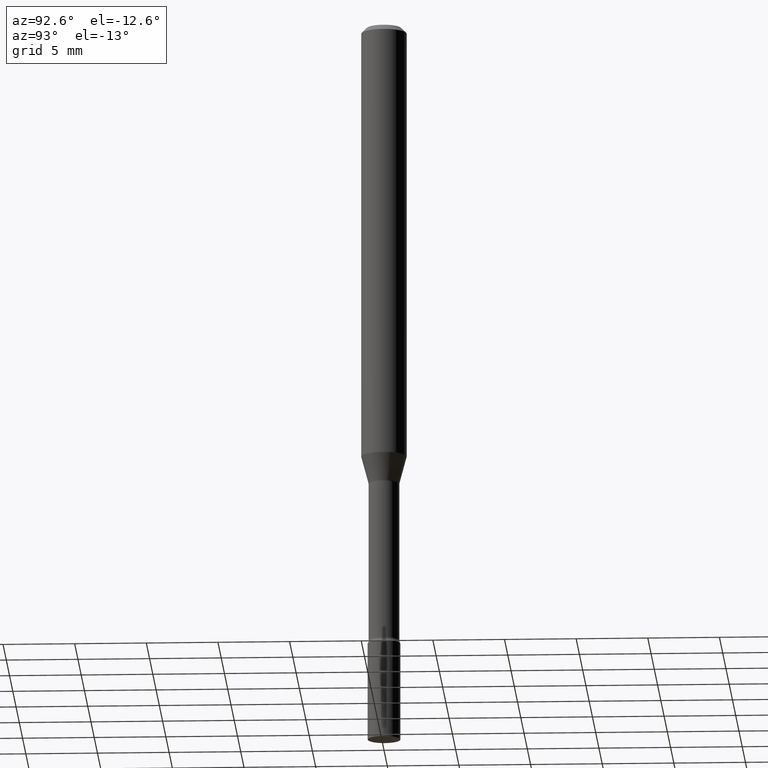
[diagram: clean part render]
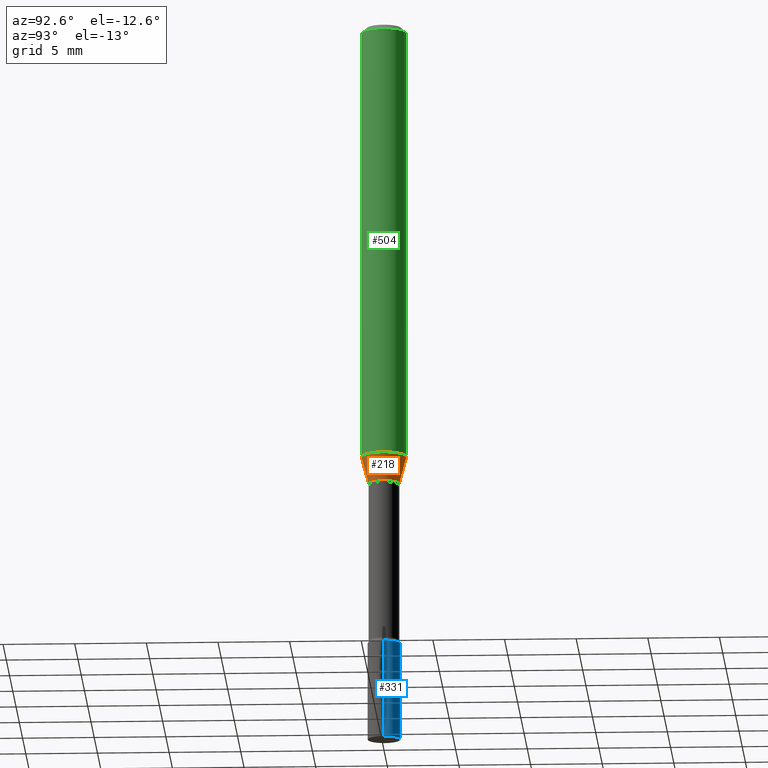
[diagram: same view with three faces highlighted in distinct colors, each labeled with its STEP entity id]
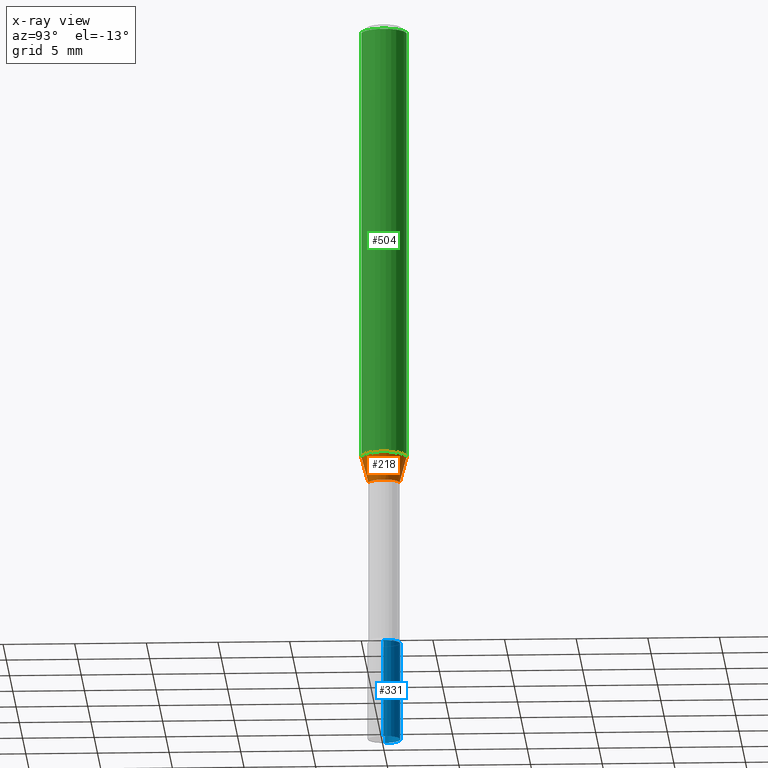
[diagram: x-ray of the same camera — body ghosted, the three highlighted faces saturated]
A machine part, auxiliary view with three faces highlighted in distinct colors.
The next image is the same camera in x-ray (body ghosted, the three faces saturated) — at least one of them is partly hidden behind the body in this view.
Their STEP definitions:

[orange] entity #218 — the highlighted conical surface has half-angle 15 deg.
#7 = CARTESIAN_POINT ( 'NONE',  ( 4.440892098500921985E-16, 0.06249999999999582279, -1.204612573687109167 ) ) ;
#9 = EDGE_CURVE ( 'NONE', #494, #47, #237, .T. ) ;
#31 = CARTESIAN_POINT ( 'NONE',  ( -4.364351673553619392E-16, -0.06250000000000417721, -1.204612573687108723 ) ) ;
#47 = VERTEX_POINT ( 'NONE', #31 ) ;
#51 = VECTOR ( 'NONE', #233, 39.37007874015748143 ) ;
#59 = ORIENTED_EDGE ( 'NONE', *, *, #224, .F. ) ;
#65 = DIRECTION ( 'NONE',  ( -2.445564497008087352E-29, 3.491344304138296530E-15, 1.000000000000000000 ) ) ;
#67 = CARTESIAN_POINT ( 'NONE',  ( -2.989484015155442854E-16, -0.04281111260566843740, -1.278092501787272850 ) ) ;
#93 = VECTOR ( 'NONE', #175, 39.37007874015748143 ) ;
#113 = DIRECTION ( 'NONE',  ( -2.445564497008087352E-29, 3.491344304138296530E-15, 1.000000000000000000 ) ) ;
#125 = CARTESIAN_POINT ( 'NONE',  ( -2.989484015155442854E-16, -0.04281111260566843740, -1.278092501787272850 ) ) ;
#139 = LINE ( 'NONE', #486, #93 ) ;
#144 = VERTEX_POINT ( 'NONE', #7 ) ;
#157 = EDGE_CURVE ( 'NONE', #340, #144, #139, .T. ) ;
#159 = CONICAL_SURFACE ( 'NONE', #359, 0.04281111260566396876, 0.2617993877991502960 ) ;
#162 = CARTESIAN_POINT ( 'NONE',  ( 3.741402302838724935E-16, 0.04281111260565950705, -1.278092501787273294 ) ) ;
#175 = DIRECTION ( 'NONE',  ( 1.839019923739600315E-15, 0.2588190451025249583, 0.9659258262890670910 ) ) ;
#181 = CIRCLE ( 'NONE', #473, 0.04281111260566396876 ) ;
#211 = EDGE_CURVE ( 'NONE', #494, #340, #181, .T. ) ;
#218 = ADVANCED_FACE ( 'NONE', ( #498 ), #159, .T. ) ;
#224 = EDGE_CURVE ( 'NONE', #47, #144, #270, .T. ) ;
#228 = ORIENTED_EDGE ( 'NONE', *, *, #157, .T. ) ;
#233 = DIRECTION ( 'NONE',  ( -1.807323732225330139E-15, -0.2588190451025181860, 0.9659258262890689783 ) ) ;
#237 = LINE ( 'NONE', #67, #51 ) ;
#262 = ORIENTED_EDGE ( 'NONE', *, *, #9, .F. ) ;
#266 = DIRECTION ( 'NONE',  ( -6.982962677686265133E-15, -1.000000000000000000, 6.381165607227960443E-15 ) ) ;
#269 = EDGE_LOOP ( 'NONE', ( #452, #228, #59, #262 ) ) ;
#270 = CIRCLE ( 'NONE', #322, 0.06250000000000000000 ) ;
#277 = CARTESIAN_POINT ( 'NONE',  ( 3.125657646263201174E-29, -4.462260976276861974E-15, -1.278092501787273072 ) ) ;
#305 = DIRECTION ( 'NONE',  ( -6.982962677686265922E-15, -1.000000000000000000, 4.370956789862821150E-15 ) ) ;
#307 = DIRECTION ( 'NONE',  ( -2.445564497008087352E-29, 3.491344304138296530E-15, 1.000000000000000000 ) ) ;
#322 = AXIS2_PLACEMENT_3D ( 'NONE', #419, #65, #305 ) ;
#340 = VERTEX_POINT ( 'NONE', #162 ) ;
#359 = AXIS2_PLACEMENT_3D ( 'NONE', #277, #307, #511 ) ;
#419 = CARTESIAN_POINT ( 'NONE',  ( 2.945957742858732346E-29, -4.205717247835861609E-15, -1.204612573687108945 ) ) ;
#452 = ORIENTED_EDGE ( 'NONE', *, *, #211, .T. ) ;
#456 = CARTESIAN_POINT ( 'NONE',  ( 3.125657646263201174E-29, -4.462260976276861974E-15, -1.278092501787273072 ) ) ;
#473 = AXIS2_PLACEMENT_3D ( 'NONE', #456, #113, #266 ) ;
#486 = CARTESIAN_POINT ( 'NONE',  ( 3.041912507176530843E-16, 0.04281111260565950705, -1.278092501787273294 ) ) ;
#494 = VERTEX_POINT ( 'NONE', #125 ) ;
#498 = FACE_OUTER_BOUND ( 'NONE', #269, .T. ) ;
#511 = DIRECTION ( 'NONE',  ( -6.982962677686265133E-15, -1.000000000000000000, 6.381165607227960443E-15 ) ) ;

[blue] entity #331 — the highlighted cylindrical surface (edge-blend (fillet) strip) has radius 1.143 mm, axis along (-0, 0, 1).
#3 = ORIENTED_EDGE ( 'NONE', *, *, #391, .T. ) ;
#4 = CIRCLE ( 'NONE', #222, 0.04499999999999999833 ) ;
#14 = CIRCLE ( 'NONE', #342, 0.04499999999999999833 ) ;
#36 = CARTESIAN_POINT ( 'NONE',  ( 0.04499999999999999833, -7.297195998182173641E-15, -2.000000000000000000 ) ) ;
#61 = ORIENTED_EDGE ( 'NONE', *, *, #79, .F. ) ;
#70 = VERTEX_POINT ( 'NONE', #468 ) ;
#76 = CARTESIAN_POINT ( 'NONE',  ( 4.890937612370273194E-29, -6.982962677686291165E-15, -2.000000000000000000 ) ) ;
#79 = EDGE_CURVE ( 'NONE', #430, #70, #4, .T. ) ;
#86 = FACE_OUTER_BOUND ( 'NONE', #126, .T. ) ;
#118 = DIRECTION ( 'NONE',  ( 1.000000000000000000, -6.982962677686269077E-15, 0.000000000000000000 ) ) ;
#122 = DIRECTION ( 'NONE',  ( -2.445468806185136597E-29, 3.491481338843145583E-15, 1.000000000000000000 ) ) ;
#126 = EDGE_LOOP ( 'NONE', ( #3, #376, #61, #177 ) ) ;
#177 = ORIENTED_EDGE ( 'NONE', *, *, #394, .F. ) ;
#185 = CARTESIAN_POINT ( 'NONE',  ( 0.04499999999999999833, -6.354496036694523059E-15, -1.729999999999999760 ) ) ;
#201 = DIRECTION ( 'NONE',  ( 1.000000000000000000, -6.982962677686266711E-15, 4.876176775795935793E-29 ) ) ;
#204 = CARTESIAN_POINT ( 'NONE',  ( -0.04499999999999999833, 3.197442310920450718E-16, -2.213520790614707560E-30 ) ) ;
#222 = AXIS2_PLACEMENT_3D ( 'NONE', #319, #470, #118 ) ;
#252 = LINE ( 'NONE', #204, #449 ) ;
#285 = DIRECTION ( 'NONE',  ( 1.000000000000000000, -6.982962677686269077E-15, 0.000000000000000000 ) ) ;
#289 = CARTESIAN_POINT ( 'NONE',  ( -0.04499999999999999833, -6.191868465850420113E-15, -2.000000000000000000 ) ) ;
#319 = CARTESIAN_POINT ( 'NONE',  ( 4.230661034700285954E-29, -6.040262716198641373E-15, -1.729999999999999760 ) ) ;
#327 = DIRECTION ( 'NONE',  ( -2.445468806185136877E-29, 3.491481338843145188E-15, 1.000000000000000000 ) ) ;
#331 = ADVANCED_FACE ( 'NONE', ( #86 ), #400, .T. ) ;
#337 = VERTEX_POINT ( 'NONE', #289 ) ;
#342 = AXIS2_PLACEMENT_3D ( 'NONE', #76, #364, #285 ) ;
#364 = DIRECTION ( 'NONE',  ( -2.445468806185136597E-29, 3.491481338843145583E-15, 1.000000000000000000 ) ) ;
#376 = ORIENTED_EDGE ( 'NONE', *, *, #379, .T. ) ;
#379 = EDGE_CURVE ( 'NONE', #337, #70, #252, .T. ) ;
#391 = EDGE_CURVE ( 'NONE', #484, #337, #14, .T. ) ;
#394 = EDGE_CURVE ( 'NONE', #484, #430, #479, .T. ) ;
#400 = CYLINDRICAL_SURFACE ( 'NONE', #454, 0.04499999999999999833 ) ;
#430 = VERTEX_POINT ( 'NONE', #185 ) ;
#434 = DIRECTION ( 'NONE',  ( -2.445468806185136877E-29, 3.491481338843145188E-15, 1.000000000000000000 ) ) ;
#437 = CARTESIAN_POINT ( 'NONE',  ( 0.04499999999999999833, -3.142333204958819823E-16, 2.194279549108170967E-30 ) ) ;
#449 = VECTOR ( 'NONE', #327, 39.37007874015748143 ) ;
#454 = AXIS2_PLACEMENT_3D ( 'NONE', #472, #122, #201 ) ;
#468 = CARTESIAN_POINT ( 'NONE',  ( -0.04499999999999999833, -6.191868465850420113E-15, -1.729999999999999760 ) ) ;
#470 = DIRECTION ( 'NONE',  ( -2.445468806185136597E-29, 3.491481338843145583E-15, 1.000000000000000000 ) ) ;
#472 = CARTESIAN_POINT ( 'NONE',  ( 0.000000000000000000, 0.000000000000000000, 0.000000000000000000 ) ) ;
#479 = LINE ( 'NONE', #437, #489 ) ;
#484 = VERTEX_POINT ( 'NONE', #36 ) ;
#489 = VECTOR ( 'NONE', #434, 39.37007874015748143 ) ;

[green] entity #504 — the highlighted cylindrical surface (edge-blend (fillet) strip) has radius 1.5875 mm, axis along (-0, 0, 1).
#5 = AXIS2_PLACEMENT_3D ( 'NONE', #192, #87, #38 ) ;
#7 = CARTESIAN_POINT ( 'NONE',  ( 4.440892098500921985E-16, 0.06249999999999582279, -1.204612573687109167 ) ) ;
#31 = CARTESIAN_POINT ( 'NONE',  ( -4.364351673553619392E-16, -0.06250000000000417721, -1.204612573687108723 ) ) ;
#34 = LINE ( 'NONE', #324, #341 ) ;
#37 = DIRECTION ( 'NONE',  ( -2.445564497008087352E-29, 3.491344304138296135E-15, 1.000000000000000000 ) ) ;
#38 = DIRECTION ( 'NONE',  ( -6.982962677686265922E-15, -1.000000000000000000, 3.483106191921935554E-15 ) ) ;
#45 = CARTESIAN_POINT ( 'NONE',  ( -4.364351673553912750E-16, -0.06250000000000005551, -0.01499999999999981209 ) ) ;
#47 = VERTEX_POINT ( 'NONE', #31 ) ;
#65 = DIRECTION ( 'NONE',  ( -2.445564497008087352E-29, 3.491344304138296530E-15, 1.000000000000000000 ) ) ;
#87 = DIRECTION ( 'NONE',  ( -2.445564497008087352E-29, 3.491344304138296530E-15, 1.000000000000000000 ) ) ;
#88 = DIRECTION ( 'NONE',  ( -2.445564497008087352E-29, 3.491344304138296530E-15, 1.000000000000000000 ) ) ;
#92 = ORIENTED_EDGE ( 'NONE', *, *, #425, .F. ) ;
#120 = AXIS2_PLACEMENT_3D ( 'NONE', #392, #88, #288 ) ;
#144 = VERTEX_POINT ( 'NONE', #7 ) ;
#153 = VERTEX_POINT ( 'NONE', #170 ) ;
#167 = VECTOR ( 'NONE', #37, 39.37007874015748143 ) ;
#170 = CARTESIAN_POINT ( 'NONE',  ( 4.440892098500922971E-16, 0.06249999999999995143, -0.01500000000000024751 ) ) ;
#192 = CARTESIAN_POINT ( 'NONE',  ( 3.668346745512138210E-31, -5.237016456207455099E-17, -0.01500000000000003067 ) ) ;
#215 = ORIENTED_EDGE ( 'NONE', *, *, #224, .T. ) ;
#224 = EDGE_CURVE ( 'NONE', #47, #144, #270, .T. ) ;
#243 = LINE ( 'NONE', #474, #167 ) ;
#245 = FACE_OUTER_BOUND ( 'NONE', #336, .T. ) ;
#270 = CIRCLE ( 'NONE', #322, 0.06250000000000000000 ) ;
#288 = DIRECTION ( 'NONE',  ( -6.982962677686265922E-15, -1.000000000000000000, 3.491344304138296530E-15 ) ) ;
#290 = EDGE_CURVE ( 'NONE', #144, #153, #34, .T. ) ;
#305 = DIRECTION ( 'NONE',  ( -6.982962677686265922E-15, -1.000000000000000000, 4.370956789862821150E-15 ) ) ;
#309 = VERTEX_POINT ( 'NONE', #45 ) ;
#322 = AXIS2_PLACEMENT_3D ( 'NONE', #419, #65, #305 ) ;
#324 = CARTESIAN_POINT ( 'NONE',  ( 4.440892098500625669E-16, 0.06250000000000000000, -2.182090190086435331E-16 ) ) ;
#330 = CIRCLE ( 'NONE', #5, 0.06250000000000000000 ) ;
#336 = EDGE_LOOP ( 'NONE', ( #215, #492, #509, #92 ) ) ;
#341 = VECTOR ( 'NONE', #518, 39.37007874015748143 ) ;
#392 = CARTESIAN_POINT ( 'NONE',  ( 0.000000000000000000, 0.000000000000000000, 0.000000000000000000 ) ) ;
#419 = CARTESIAN_POINT ( 'NONE',  ( 2.945957742858732346E-29, -4.205717247835861609E-15, -1.204612573687108945 ) ) ;
#425 = EDGE_CURVE ( 'NONE', #47, #309, #243, .T. ) ;
#441 = CYLINDRICAL_SURFACE ( 'NONE', #120, 0.06250000000000000000 ) ;
#460 = EDGE_CURVE ( 'NONE', #309, #153, #330, .T. ) ;
#474 = CARTESIAN_POINT ( 'NONE',  ( -4.364351673553916201E-16, -0.06250000000000000000, 2.182090190086435331E-16 ) ) ;
#492 = ORIENTED_EDGE ( 'NONE', *, *, #290, .T. ) ;
#504 = ADVANCED_FACE ( 'NONE', ( #245 ), #441, .T. ) ;
#509 = ORIENTED_EDGE ( 'NONE', *, *, #460, .F. ) ;
#518 = DIRECTION ( 'NONE',  ( -2.445564497008087352E-29, 3.491344304138296135E-15, 1.000000000000000000 ) ) ;